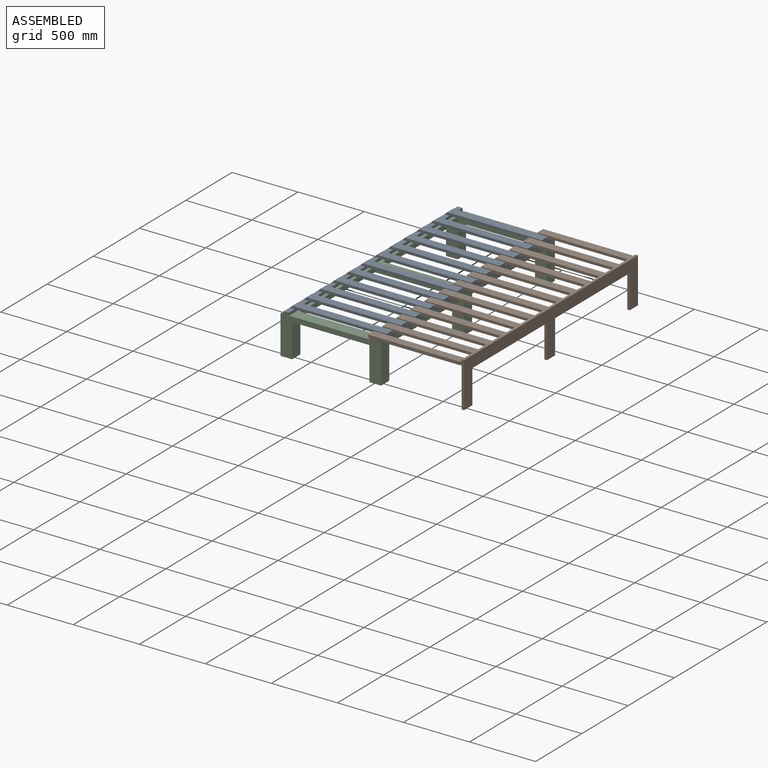
[diagram: assembled view]
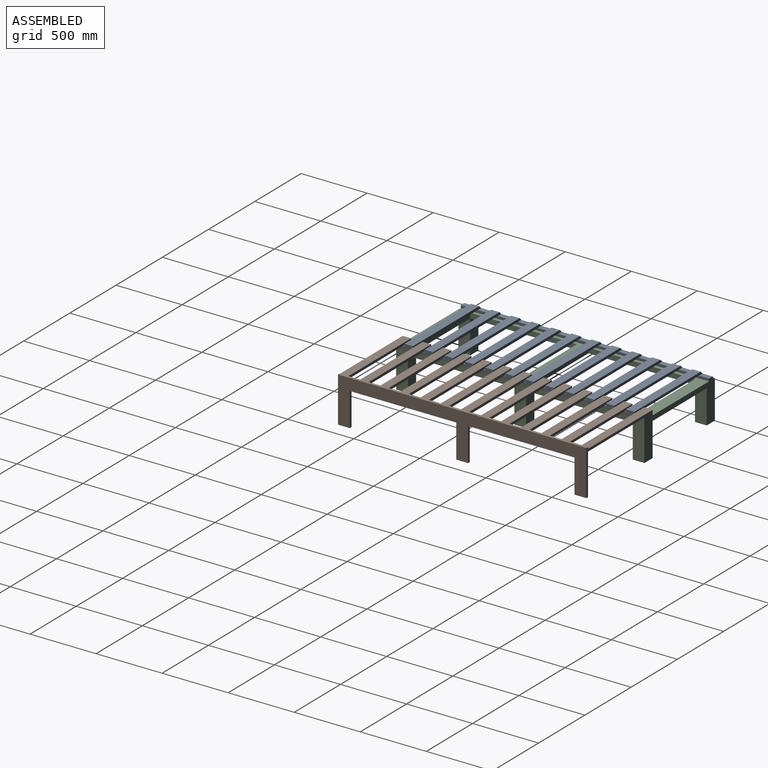
[diagram: assembled view, second angle]
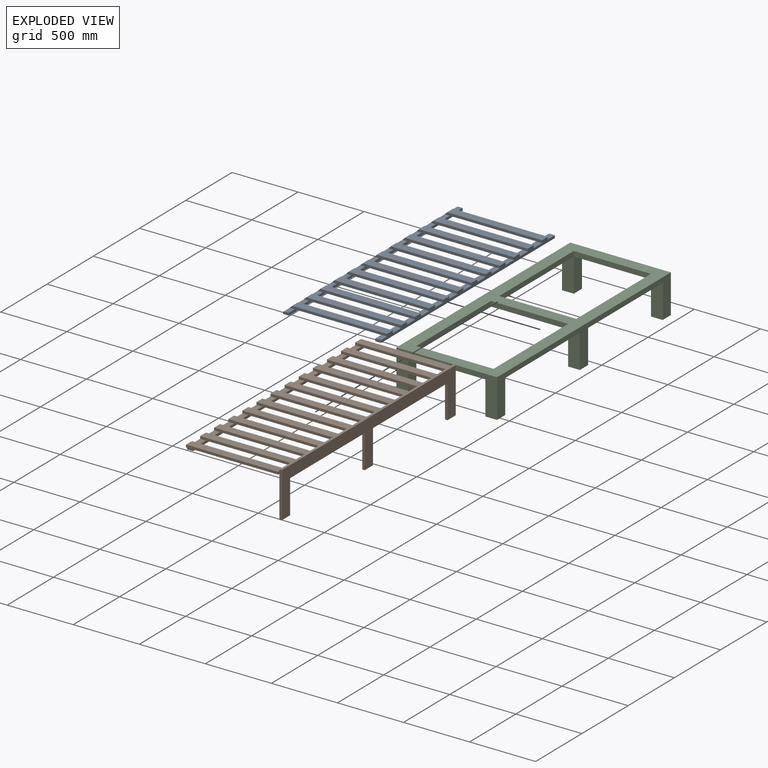
[diagram: exploded view]
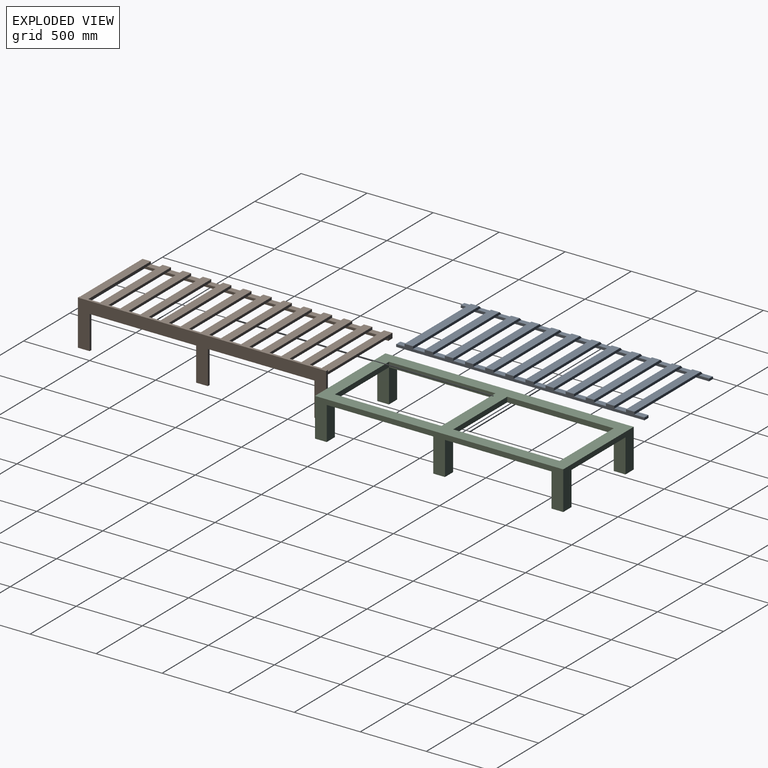
[diagram: exploded view, second angle]
ASSEMBLY  parts=3 mates=4
PART A: 85 faces, bbox 743x1879.6x38.1 mm
  f0: plane 76.2x44.45mm, normal (0,0,1), area 3387.1mm2, adj f12,f13,f15,f64
  f1: plane 88.9x44.45mm, normal (0,0,1), area 3951.6mm2, adj f13,f15,f59,f63
  f2: plane 88.9x44.45mm, normal (0,0,1), area 3951.6mm2, adj f13,f15,f55,f60
  f3: plane 88.9x44.45mm, normal (0,0,1), area 3951.6mm2, adj f13,f15,f51,f56
  f4: plane 88.9x44.45mm, normal (0,0,1), area 3951.6mm2, adj f13,f15,f47,f52
  f5: plane 88.9x44.45mm, normal (0,0,1), area 3951.6mm2, adj f13,f15,f43,f48
  f6: plane 88.9x44.45mm, normal (0,0,1), area 3951.6mm2, adj f13,f15,f39,f44
  f7: plane 88.9x44.45mm, normal (0,0,1), area 3951.6mm2, adj f13,f15,f35,f40
  f8: plane 88.9x44.45mm, normal (0,0,1), area 3951.6mm2, adj f13,f15,f31,f36
  f9: plane 88.9x44.45mm, normal (0,0,1), area 3951.6mm2, adj f13,f15,f27,f32
  f10: plane 88.9x44.45mm, normal (0,0,1), area 3951.6mm2, adj f13,f15,f23,f28
  f11: plane 88.9x44.45mm, normal (0,0,1), area 3951.6mm2, adj f13,f15,f19,f24
  f12: plane 44.45x19.05mm, normal (0,1,0), area 846.8mm2, adj f0,f13,f15,f17
  f13: plane 1879.6x19.05mm, normal (-1,0,0), area 35806.4mm2, adj f0,f1,f2,f3,f4,f5,f6,f7
  f14: plane 44.45x19.05mm, normal (0,-1,0), area 846.8mm2, adj f13,f15,f16,f17
  f15: plane 1879.6x38.1mm, normal (1,0,0), area 50322.5mm2, adj f0,f1,f2,f3,f4,f5,f6,f7
  f16: plane 63.5x44.45mm, normal (0,0,1), area 2822.6mm2, adj f13,f14,f15,f20
  f17: plane 1879.6x44.45mm, normal (0,0,-1), area 83548.2mm2, adj f12,f13,f14,f15
  f18: plane 654.05x63.5mm, normal (0,0,-1), area 41532.2mm2, adj f13,f19,f20,f81
  f19: plane 736.6x19.05mm, normal (0,1,0), area 13850.8mm2, adj f11,f15,f18,f21,f77,f84
  f20: plane 736.6x19.05mm, normal (0,-1,0), area 13850.8mm2, adj f15,f16,f18,f21,f82,f84
  f21: plane 717.55x63.5mm, normal (0,0,1), area 45564.4mm2, adj f15,f19,f20,f84
  f22: plane 654.05x63.5mm, normal (0,0,-1), area 41532.2mm2, adj f13,f23,f24,f81
  f23: plane 736.6x19.05mm, normal (0,1,0), area 13850.8mm2, adj f10,f15,f22,f25,f76,f84
  f24: plane 736.6x19.05mm, normal (0,-1,0), area 13850.8mm2, adj f11,f15,f22,f25,f77,f84
  f25: plane 717.55x63.5mm, normal (0,0,1), area 45564.4mm2, adj f15,f23,f24,f84
  f26: plane 654.05x63.5mm, normal (0,0,-1), area 41532.2mm2, adj f13,f27,f28,f81
  f27: plane 736.6x19.05mm, normal (0,1,0), area 13850.8mm2, adj f9,f15,f26,f29,f75,f84
  f28: plane 736.6x19.05mm, normal (0,-1,0), area 13850.8mm2, adj f10,f15,f26,f29,f76,f84
  f29: plane 717.55x63.5mm, normal (0,0,1), area 45564.4mm2, adj f15,f27,f28,f84
  f30: plane 654.05x63.5mm, normal (0,0,-1), area 41532.2mm2, adj f13,f31,f32,f81
  f31: plane 736.6x19.05mm, normal (0,1,0), area 13850.8mm2, adj f8,f15,f30,f33,f74,f84
  f32: plane 736.6x19.05mm, normal (0,-1,0), area 13850.8mm2, adj f9,f15,f30,f33,f75,f84
  f33: plane 717.55x63.5mm, normal (0,0,1), area 45564.4mm2, adj f15,f31,f32,f84
  f34: plane 654.05x63.5mm, normal (0,0,-1), area 41532.2mm2, adj f13,f35,f36,f81
  f35: plane 736.6x19.05mm, normal (0,1,0), area 13850.8mm2, adj f7,f15,f34,f37,f73,f84
  f36: plane 736.6x19.05mm, normal (0,-1,0), area 13850.8mm2, adj f8,f15,f34,f37,f74,f84
  f37: plane 717.55x63.5mm, normal (0,0,1), area 45564.4mm2, adj f15,f35,f36,f84
  f38: plane 654.05x63.5mm, normal (0,0,-1), area 41532.2mm2, adj f13,f39,f40,f81
  f39: plane 736.6x19.05mm, normal (0,1,0), area 13850.8mm2, adj f6,f15,f38,f41,f72,f84
  f40: plane 736.6x19.05mm, normal (0,-1,0), area 13850.8mm2, adj f7,f15,f38,f41,f73,f84
  f41: plane 717.55x63.5mm, normal (0,0,1), area 45564.4mm2, adj f15,f39,f40,f84
  f42: plane 654.05x63.5mm, normal (0,0,-1), area 41532.2mm2, adj f13,f43,f44,f81
  f43: plane 736.6x19.05mm, normal (0,1,0), area 13850.8mm2, adj f5,f15,f42,f45,f71,f84
  f44: plane 736.6x19.05mm, normal (0,-1,0), area 13850.8mm2, adj f6,f15,f42,f45,f72,f84
  f45: plane 717.55x63.5mm, normal (0,0,1), area 45564.4mm2, adj f15,f43,f44,f84
  f46: plane 654.05x63.5mm, normal (0,0,-1), area 41532.2mm2, adj f13,f47,f48,f81
  f47: plane 736.6x19.05mm, normal (0,1,0), area 13850.8mm2, adj f4,f15,f46,f49,f70,f84
  f48: plane 736.6x19.05mm, normal (0,-1,0), area 13850.8mm2, adj f5,f15,f46,f49,f71,f84
  f49: plane 717.55x63.5mm, normal (0,0,1), area 45564.4mm2, adj f15,f47,f48,f84
  f50: plane 654.05x63.5mm, normal (0,0,-1), area 41532.2mm2, adj f13,f51,f52,f81
  f51: plane 736.6x19.05mm, normal (0,1,0), area 13850.8mm2, adj f3,f15,f50,f53,f69,f84
  f52: plane 736.6x19.05mm, normal (0,-1,0), area 13850.8mm2, adj f4,f15,f50,f53,f70,f84
  f53: plane 717.55x63.5mm, normal (0,0,1), area 45564.4mm2, adj f15,f51,f52,f84
  f54: plane 654.05x63.5mm, normal (0,0,-1), area 41532.2mm2, adj f13,f55,f56,f81
  f55: plane 736.6x19.05mm, normal (0,1,0), area 13850.8mm2, adj f2,f15,f54,f57,f68,f84
  f56: plane 736.6x19.05mm, normal (0,-1,0), area 13850.8mm2, adj f3,f15,f54,f57,f69,f84
  f57: plane 717.55x63.5mm, normal (0,0,1), area 45564.4mm2, adj f15,f55,f56,f84
  f58: plane 654.05x63.5mm, normal (0,0,-1), area 41532.2mm2, adj f13,f59,f60,f81
  f59: plane 736.6x19.05mm, normal (0,1,0), area 13850.8mm2, adj f1,f15,f58,f61,f67,f84
  f60: plane 736.6x19.05mm, normal (0,-1,0), area 13850.8mm2, adj f2,f15,f58,f61,f68,f84
  f61: plane 717.55x63.5mm, normal (0,0,1), area 45564.4mm2, adj f15,f59,f60,f84
  f62: plane 654.05x63.5mm, normal (0,0,-1), area 41532.2mm2, adj f13,f63,f64,f81
  f63: plane 736.6x19.05mm, normal (0,-1,0), area 13850.8mm2, adj f1,f15,f62,f65,f67,f84
  f64: plane 736.6x19.05mm, normal (0,1,0), area 13850.8mm2, adj f0,f15,f62,f65,f66,f84
  f65: plane 717.55x63.5mm, normal (0,0,1), area 45564.4mm2, adj f15,f63,f64,f84
  f66: plane 76.2x38.1mm, normal (0,0,1), area 2903.2mm2, adj f64,f78,f81,f84
  f67: plane 88.9x38.1mm, normal (0,0,1), area 3387.1mm2, adj f59,f63,f81,f84
  f68: plane 88.9x38.1mm, normal (0,0,1), area 3387.1mm2, adj f55,f60,f81,f84
  f69: plane 88.9x38.1mm, normal (0,0,1), area 3387.1mm2, adj f51,f56,f81,f84
  f70: plane 88.9x38.1mm, normal (0,0,1), area 3387.1mm2, adj f47,f52,f81,f84
  f71: plane 88.9x38.1mm, normal (0,0,1), area 3387.1mm2, adj f43,f48,f81,f84
  f72: plane 88.9x38.1mm, normal (0,0,1), area 3387.1mm2, adj f39,f44,f81,f84
  f73: plane 88.9x38.1mm, normal (0,0,1), area 3387.1mm2, adj f35,f40,f81,f84
  f74: plane 88.9x38.1mm, normal (0,0,1), area 3387.1mm2, adj f31,f36,f81,f84
  f75: plane 88.9x38.1mm, normal (0,0,1), area 3387.1mm2, adj f27,f32,f81,f84
  f76: plane 88.9x38.1mm, normal (0,0,1), area 3387.1mm2, adj f23,f28,f81,f84
  f77: plane 88.9x38.1mm, normal (0,0,1), area 3387.1mm2, adj f19,f24,f81,f84
  f78: plane 44.45x19.05mm, normal (0,1,0), area 826.6mm2, adj f66,f79,f81,f83,f84
  f79: plane 1879.6x12.7mm, normal (-1,0,0), area 23870.9mm2, adj f78,f80,f83,f84
  f80: plane 44.45x19.05mm, normal (0,-1,0), area 826.6mm2, adj f79,f81,f82,f83,f84
  f81: plane 1879.6x19.05mm, normal (1,0,0), area 35806.4mm2, adj f18,f22,f26,f30,f34,f38,f42,f46
  f82: plane 63.5x38.1mm, normal (0,0,1), area 2419.4mm2, adj f20,f80,f81,f84
  f83: plane 1879.6x44.45mm, normal (0,0,-1), area 83548.2mm2, adj f78,f79,f80,f81
  f84: plane 1879.6x25.4mm, normal (-0.71,0,0.71), area 37408.2mm2, adj f19,f20,f21,f23,f24,f25,f27,f28
PART B: 82 faces, bbox 717.6x1892.3x342.9 mm
  f0: plane 806.45x19.05mm, normal (0,0,-1), area 15362.9mm2, adj f73,f74,f77,f80
  f1: plane 806.45x19.05mm, normal (0,0,-1), area 15362.9mm2, adj f73,f74,f75,f79
  f2: plane 88.9x44.45mm, normal (0,0,1), area 3951.6mm2, adj f14,f16,f63,f67
  f3: plane 88.9x44.45mm, normal (0,0,1), area 3951.6mm2, adj f14,f16,f59,f62
  f4: plane 88.9x44.45mm, normal (0,0,1), area 3951.6mm2, adj f14,f16,f55,f58
  f5: plane 88.9x44.45mm, normal (0,0,1), area 3951.6mm2, adj f14,f16,f51,f54
  f6: plane 88.9x44.45mm, normal (0,0,1), area 3951.6mm2, adj f14,f16,f47,f50
  f7: plane 88.9x44.45mm, normal (0,0,1), area 3951.6mm2, adj f14,f16,f43,f46
  f8: plane 88.9x44.45mm, normal (0,0,1), area 3951.6mm2, adj f14,f16,f39,f42
  f9: plane 88.9x44.45mm, normal (0,0,1), area 3951.6mm2, adj f14,f16,f35,f38
  f10: plane 88.9x44.45mm, normal (0,0,1), area 3951.6mm2, adj f14,f16,f31,f34
  f11: plane 88.9x44.45mm, normal (0,0,1), area 3951.6mm2, adj f14,f16,f27,f30
  f12: plane 88.9x44.45mm, normal (0,0,1), area 3951.6mm2, adj f14,f16,f23,f26
  f13: plane 88.9x44.45mm, normal (0,0,1), area 3951.6mm2, adj f14,f16,f19,f22
  f14: plane 1879.6x19.05mm, normal (1,0,0), area 35806.4mm2, adj f2,f3,f4,f5,f6,f7,f8,f9
  f15: plane 717.55x342.9mm, normal (0,1,0), area 20685.4mm2, adj f14,f16,f18,f20,f21,f71,f73,f74
  f16: plane 1892.3x38.1mm, normal (-1,0,0), area 51532.2mm2, adj f2,f3,f4,f5,f6,f7,f8,f9
  f17: plane 44.45x19.05mm, normal (0,-1,0), area 846.8mm2, adj f14,f16,f18,f70
  f18: plane 1879.6x44.45mm, normal (0,0,-1), area 83548.2mm2, adj f14,f15,f16,f17
  f19: plane 698.5x19.05mm, normal (0,-1,0), area 13306.4mm2, adj f13,f16,f20,f21,f74
  f20: plane 698.5x63.5mm, normal (0,0,1), area 44354.7mm2, adj f15,f16,f19,f74
  f21: plane 654.05x63.5mm, normal (0,0,-1), area 41532.2mm2, adj f14,f15,f19,f74
  f22: plane 698.5x19.05mm, normal (0,1,0), area 13306.4mm2, adj f13,f16,f24,f25,f74
  f23: plane 698.5x19.05mm, normal (0,-1,0), area 13306.4mm2, adj f12,f16,f24,f25,f74
  f24: plane 698.5x63.5mm, normal (0,0,1), area 44354.8mm2, adj f16,f22,f23,f74
  f25: plane 654.05x63.5mm, normal (0,0,-1), area 41532.2mm2, adj f14,f22,f23,f74
  f26: plane 698.5x19.05mm, normal (0,1,0), area 13306.4mm2, adj f12,f16,f28,f29,f74
  f27: plane 698.5x19.05mm, normal (0,-1,0), area 13306.4mm2, adj f11,f16,f28,f29,f74
  f28: plane 698.5x63.5mm, normal (0,0,1), area 44354.7mm2, adj f16,f26,f27,f74
  f29: plane 654.05x63.5mm, normal (0,0,-1), area 41532.2mm2, adj f14,f26,f27,f74
  f30: plane 698.5x19.05mm, normal (0,1,0), area 13306.4mm2, adj f11,f16,f32,f33,f74
  f31: plane 698.5x19.05mm, normal (0,-1,0), area 13306.4mm2, adj f10,f16,f32,f33,f74
  f32: plane 698.5x63.5mm, normal (0,0,1), area 44354.8mm2, adj f16,f30,f31,f74
  f33: plane 654.05x63.5mm, normal (0,0,-1), area 41532.2mm2, adj f14,f30,f31,f74
  f34: plane 698.5x19.05mm, normal (0,1,0), area 13306.4mm2, adj f10,f16,f36,f37,f74
  f35: plane 698.5x19.05mm, normal (0,-1,0), area 13306.4mm2, adj f9,f16,f36,f37,f74
  f36: plane 698.5x63.5mm, normal (0,0,1), area 44354.8mm2, adj f16,f34,f35,f74
  f37: plane 654.05x63.5mm, normal (0,0,-1), area 41532.2mm2, adj f14,f34,f35,f74
  f38: plane 698.5x19.05mm, normal (0,1,0), area 13306.4mm2, adj f9,f16,f40,f41,f74
  f39: plane 698.5x19.05mm, normal (0,-1,0), area 13306.4mm2, adj f8,f16,f40,f41,f74
  f40: plane 698.5x63.5mm, normal (0,0,1), area 44354.7mm2, adj f16,f38,f39,f74
  f41: plane 654.05x63.5mm, normal (0,0,-1), area 41532.2mm2, adj f14,f38,f39,f74
  f42: plane 698.5x19.05mm, normal (0,1,0), area 13306.4mm2, adj f8,f16,f44,f45,f74
  f43: plane 698.5x19.05mm, normal (0,-1,0), area 13306.4mm2, adj f7,f16,f44,f45,f74
  f44: plane 698.5x63.5mm, normal (0,0,1), area 44354.7mm2, adj f16,f42,f43,f74
  f45: plane 654.05x63.5mm, normal (0,0,-1), area 41532.2mm2, adj f14,f42,f43,f74
  f46: plane 698.5x19.05mm, normal (0,1,0), area 13306.4mm2, adj f7,f16,f48,f49,f74
  f47: plane 698.5x19.05mm, normal (0,-1,0), area 13306.4mm2, adj f6,f16,f48,f49,f74
  f48: plane 698.5x63.5mm, normal (0,0,1), area 44354.7mm2, adj f16,f46,f47,f74
  f49: plane 654.05x63.5mm, normal (0,0,-1), area 41532.2mm2, adj f14,f46,f47,f74
  f50: plane 698.5x19.05mm, normal (0,1,0), area 13306.4mm2, adj f6,f16,f52,f53,f74
  f51: plane 698.5x19.05mm, normal (0,-1,0), area 13306.4mm2, adj f5,f16,f52,f53,f74
  f52: plane 698.5x63.5mm, normal (0,0,1), area 44354.7mm2, adj f16,f50,f51,f74
  f53: plane 654.05x63.5mm, normal (0,0,-1), area 41532.2mm2, adj f14,f50,f51,f74
  f54: plane 698.5x19.05mm, normal (0,1,0), area 13306.4mm2, adj f5,f16,f56,f57,f74
  f55: plane 698.5x19.05mm, normal (0,-1,0), area 13306.4mm2, adj f4,f16,f56,f57,f74
  f56: plane 698.5x63.5mm, normal (0,0,1), area 44354.8mm2, adj f16,f54,f55,f74
  f57: plane 654.05x63.5mm, normal (0,0,-1), area 41532.2mm2, adj f14,f54,f55,f74
  f58: plane 698.5x19.05mm, normal (0,1,0), area 13306.4mm2, adj f4,f16,f60,f61,f74
  f59: plane 698.5x19.05mm, normal (0,-1,0), area 13306.4mm2, adj f3,f16,f60,f61,f74
  f60: plane 698.5x63.5mm, normal (0,0,1), area 44354.7mm2, adj f16,f58,f59,f74
  f61: plane 654.05x63.5mm, normal (0,0,-1), area 41532.2mm2, adj f14,f58,f59,f74
  f62: plane 698.5x19.05mm, normal (0,1,0), area 13306.4mm2, adj f3,f16,f64,f65,f74
  f63: plane 698.5x19.05mm, normal (0,-1,0), area 13306.4mm2, adj f2,f16,f64,f65,f74
  f64: plane 698.5x63.5mm, normal (0,0,1), area 44354.7mm2, adj f16,f62,f63,f74
  f65: plane 654.05x63.5mm, normal (0,0,-1), area 41532.2mm2, adj f14,f62,f63,f74
  f66: plane 19.05x12.7mm, normal (1,0,0), area 241.9mm2, adj f68,f69,f70,f72
  f67: plane 698.5x19.05mm, normal (0,1,0), area 13306.4mm2, adj f2,f16,f69,f70,f74
  f68: plane 698.5x19.05mm, normal (0,-1,0), area 13306.4mm2, adj f16,f66,f69,f70
  f69: plane 698.5x63.5mm, normal (0,0,1), area 44354.7mm2, adj f16,f66,f67,f68,f74
  f70: plane 698.5x63.5mm, normal (0,0,-1), area 42096.7mm2, adj f14,f16,f17,f66,f67,f68,f74
  f71: plane 1879.6x19.05mm, normal (0,0,1), area 35806.4mm2, adj f15,f72,f73,f74
  f72: plane 342.9x19.05mm, normal (0,-1,0), area 6532.2mm2, adj f66,f71,f73,f74,f76
  f73: plane 1879.6x342.9mm, normal (1,0,0), area 234838.2mm2, adj f0,f1,f15,f71,f72,f75,f76,f77
  f74: plane 1879.6x342.9mm, normal (-1,0,0), area 219354.4mm2, adj f0,f1,f15,f19,f20,f21,f22,f23
  f75: plane 254x19.05mm, normal (0,1,0), area 4838.7mm2, adj f1,f73,f74,f76
  f76: plane 88.9x19.05mm, normal (0,0,-1), area 1693.5mm2, adj f72,f73,f74,f75
  f77: plane 254x19.05mm, normal (0,-1,0), area 4838.7mm2, adj f0,f73,f74,f78
  f78: plane 88.9x19.05mm, normal (0,0,-1), area 1693.5mm2, adj f15,f73,f74,f77
  f79: plane 254x19.05mm, normal (0,-1,0), area 4838.7mm2, adj f1,f73,f74,f81
  f80: plane 254x19.05mm, normal (0,1,0), area 4838.7mm2, adj f0,f73,f74,f81
  f81: plane 88.9x19.05mm, normal (0,0,-1), area 1693.5mm2, adj f73,f74,f79,f80
PART C: 34 faces, bbox 762x1879.6x292.1 mm
  f0: plane 584.2x88.9mm, normal (0,0,-1), area 51935.4mm2, adj f6,f11,f29,f31
  f1: plane 1701.8x673.1mm, normal (0,0,-1), area 203225.4mm2, adj f5,f8,f9,f12,f16,f19,f24,f28
  f2: plane 806.45x88.9mm, normal (0,0,-1), area 71693.4mm2, adj f7,f15,f26,f32
  f3: plane 584.2x88.9mm, normal (0,0,-1), area 51935.4mm2, adj f13,f14,f18,f21
  f4: plane 806.45x88.9mm, normal (0,0,-1), area 71693.4mm2, adj f10,f15,f22,f25
  f5: plane 806.45x38.1mm, normal (1,0,0), area 30725.7mm2, adj f1,f6,f16,f17
  f6: plane 584.2x38.1mm, normal (0,-1,0), area 22258mm2, adj f0,f5,f7,f17
  f7: plane 806.45x38.1mm, normal (-1,0,0), area 30725.7mm2, adj f2,f6,f16,f17
  f8: plane 806.45x38.1mm, normal (1,0,0), area 30725.7mm2, adj f1,f9,f14,f17
  f9: plane 584.2x38.1mm, normal (0,-1,0), area 22258mm2, adj f1,f8,f10,f17
  f10: plane 806.45x38.1mm, normal (-1,0,0), area 30725.7mm2, adj f4,f9,f14,f17
  f11: plane 762x292.1mm, normal (0,1,0), area 74193.4mm2, adj f0,f12,f15,f17,f29,f30,f31,f33
  f12: plane 1879.6x292.1mm, normal (-1,0,0), area 116774mm2, adj f1,f11,f13,f17,f19,f20,f28,f30
  f13: plane 762x292.1mm, normal (0,-1,0), area 74193.4mm2, adj f3,f12,f15,f17,f18,f20,f21,f23
  f14: plane 584.2x38.1mm, normal (0,1,0), area 22258mm2, adj f3,f8,f10,f17
  f15: plane 1879.6x292.1mm, normal (1,0,0), area 139354.6mm2, adj f2,f4,f11,f13,f17,f22,f23,f25
  f16: plane 584.2x38.1mm, normal (0,1,0), area 22258mm2, adj f1,f5,f7,f17
  f17: plane 1879.6x762mm, normal (0,0,1), area 489999mm2, adj f5,f6,f7,f8,f9,f10,f11,f12
  f18: plane 254x88.9mm, normal (1,0,0), area 22580.6mm2, adj f3,f13,f19,f20
  f19: plane 254x88.9mm, normal (0,1,0), area 22580.6mm2, adj f1,f12,f18,f20
  f20: plane 88.9x88.9mm, normal (0,0,-1), area 7903.2mm2, adj f12,f13,f18,f19
  f21: plane 254x88.9mm, normal (-1,0,0), area 22580.6mm2, adj f3,f13,f22,f23
  f22: plane 254x88.9mm, normal (0,1,0), area 22580.6mm2, adj f4,f15,f21,f23
  f23: plane 88.9x88.9mm, normal (0,0,-1), area 7903.2mm2, adj f13,f15,f21,f22
  f24: plane 254x88.9mm, normal (-1,0,0), area 22580.6mm2, adj f1,f25,f26,f27
  f25: plane 254x88.9mm, normal (0,-1,0), area 22580.6mm2, adj f4,f15,f24,f27
  f26: plane 254x88.9mm, normal (0,1,0), area 22580.6mm2, adj f2,f15,f24,f27
  f27: plane 88.9x88.9mm, normal (0,0,-1), area 7903.2mm2, adj f15,f24,f25,f26
  f28: plane 254x88.9mm, normal (0,-1,0), area 22580.6mm2, adj f1,f12,f29,f30
  f29: plane 254x88.9mm, normal (1,0,0), area 22580.6mm2, adj f0,f11,f28,f30
  f30: plane 88.9x88.9mm, normal (0,0,-1), area 7903.2mm2, adj f11,f12,f28,f29
  f31: plane 254x88.9mm, normal (-1,0,0), area 22580.6mm2, adj f0,f11,f32,f33
  f32: plane 254x88.9mm, normal (0,-1,0), area 22580.6mm2, adj f2,f15,f31,f33
  f33: plane 88.9x88.9mm, normal (0,0,-1), area 7903.2mm2, adj f11,f15,f31,f32
PLACE A t=(-23.91,-12.06,118.15)mm
PLACE B t=(-23.91,-12.06,118.15)mm
PLACE C t=(-23.91,-12.06,118.15)mm fixed
MATE planar A.f15 <-> C.f15  axis (1,0,0) through (738.09,19.69,175.3)mm
MATE planar B.f15 <-> A.f12  axis (0,1,0) through (649.19,1867.54,175.3)mm
MATE planar B.f13 <-> A.f62  axis (0,0,1) through (671.42,1804.04,175.3)mm
MATE planar B.f14 <-> A.f13  axis (1,0,0) through (693.64,13.34,175.3)mm
